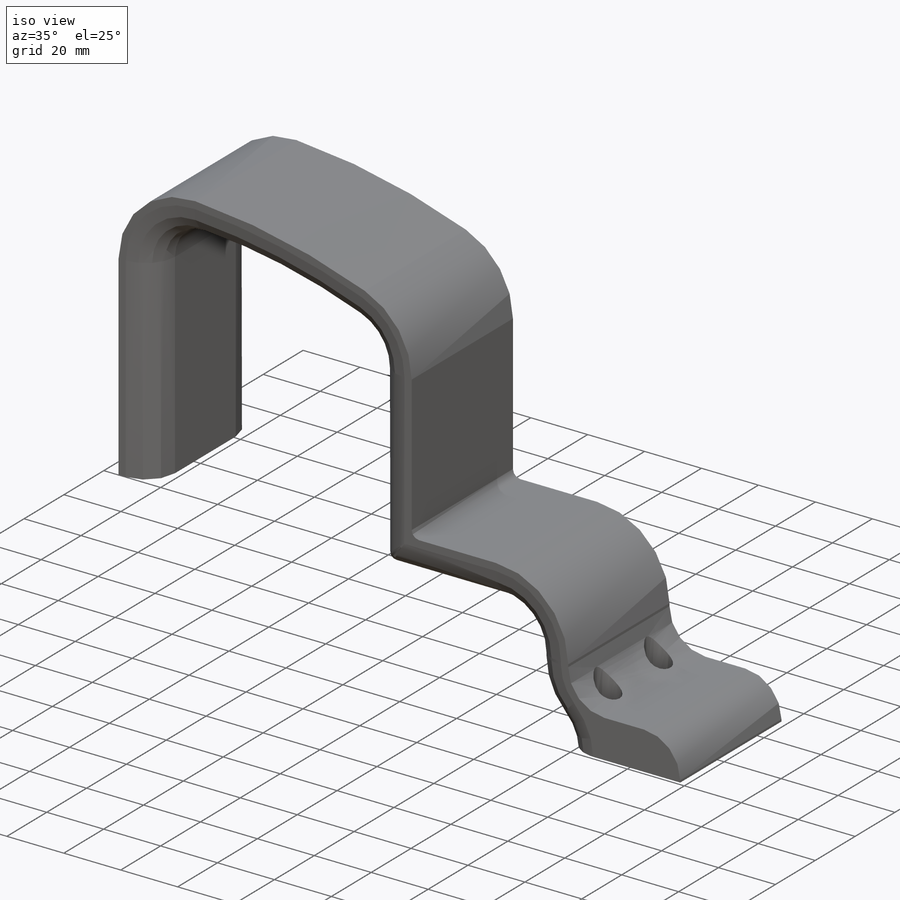
[diagram: iso view]
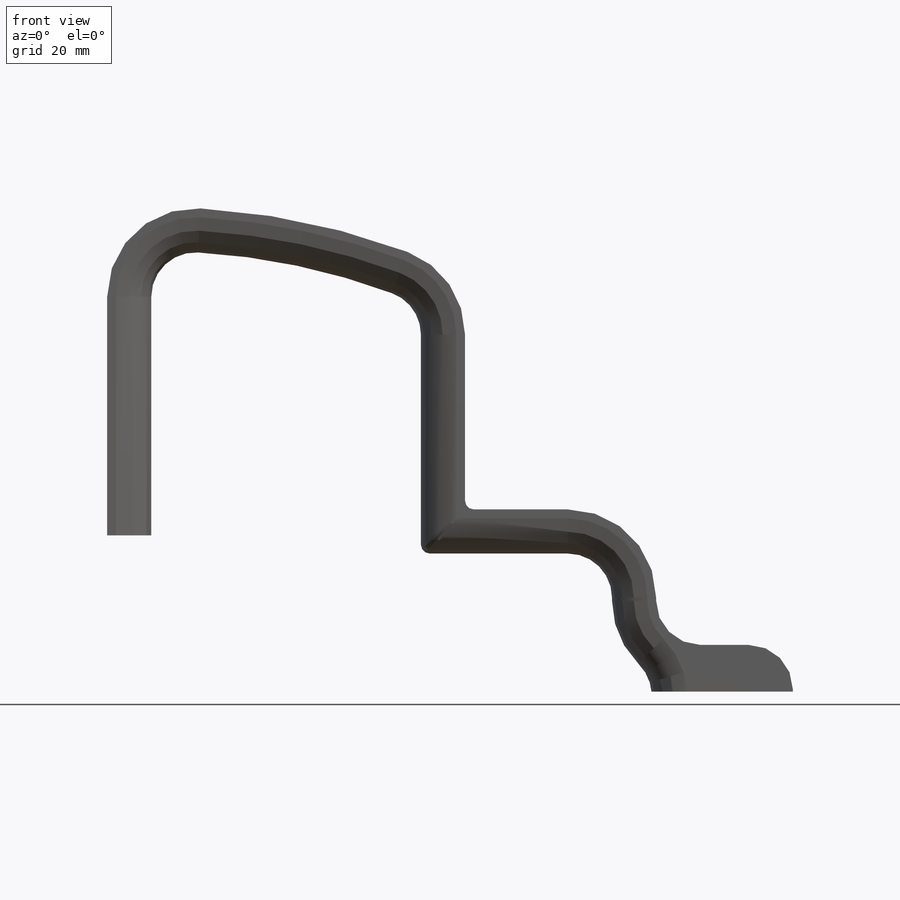
[diagram: front view]
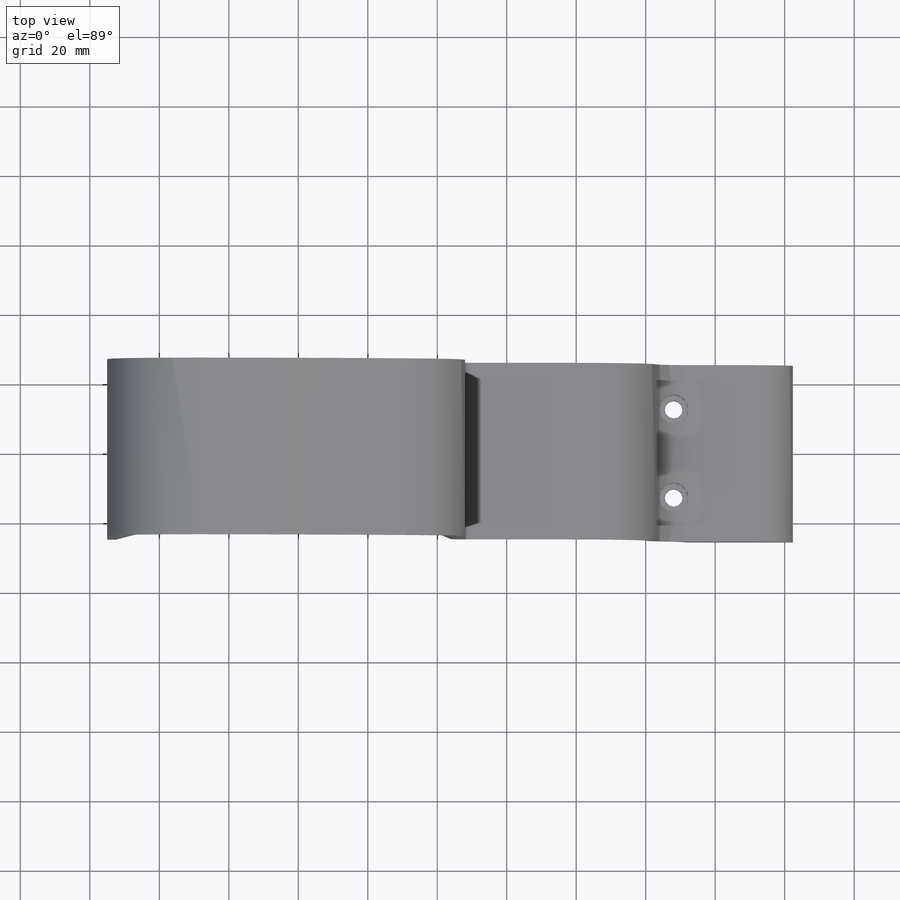
[diagram: top view]
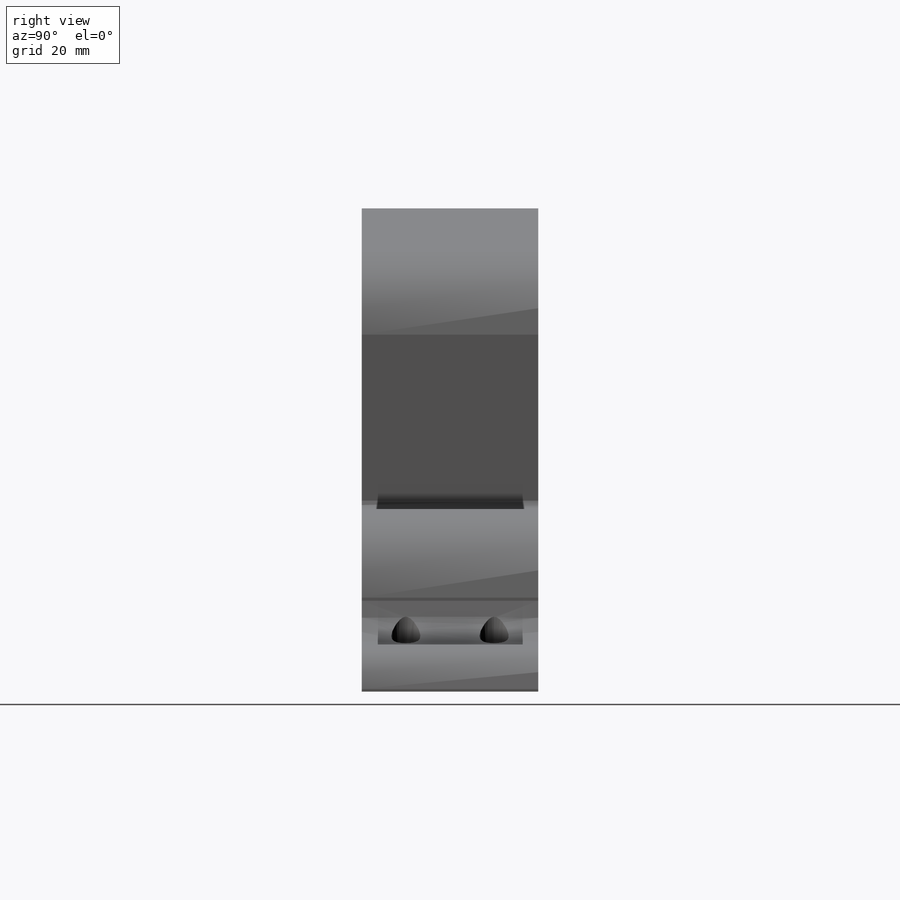
[diagram: right view]
SOLIDWORKS PART (.sldprt)
format: sldprt  version: not decoded by parser v0  size: 1,311,232 bytes
history: native  units: mm
features: sketch x13, fillet x4, hole x4, mirror x4, cut_extrude x3, thread x2, delete_body x2, material x1, extrude x1, plane x1 (+11 scaffold rows collapsed)
feature tree (46):
  scaffold x11  (default folders/planes/origin — collapsed)
  material  "ABS"
  sketch  "Sketch1"  dims[c1.D9=19.5mm c1.D10=495.3mm c1.D13=117.602mm c1.D17=429.95mm c1.D23=76.2mm c1.D30=5.588mm c1.D31=6.35mm c1.D32=12.7mm c1.D34=25.4mm c1.D35=50.8mm c1.D36=25.4mm c1.D37=25.4mm c1.D38=12.7mm c1.D33=25.4mm c2.D32=12.7mm c2.D35=25.4mm c2.D33=130.302mm c2.D36=48.26mm c2.D39=2.54mm c2.D42=12.7mm c2.D43=7.62mm c2.D1=180.0mm c2.D2=184.15mm c2.D3=2.3368mm c2.D4=130.1242mm c2.D5=2.3368mm c2.D6=26.924mm c2.D7=94.0mm c2.D8=158.0mm c2.D10=30.0mm c2.D11=92.0mm c2.D12=30.0mm c3.D12=174.28deg c3.D14=93.0mm c3.D15=123.0mm c3.D16=10.0mm c3.D18=15.0mm c3.D19=15.0mm c3.D20=5.0mm c3.D21=5.0mm c3.D22=44.45mm c3.D25=1.016mm c3.D26=0.508mm c3.D27=12.7mm c3.D28=182.3368mm c3.D29=12.7mm c3.D33=12.7mm c3.D40=12.7mm c3.D41=12.7mm c3.D24=10.0mm c3.D38=12.7mm]
  extrude  "Boss-Extrude2"  Depth=50.8mm
  fillet  "Fillet1"  Radius=10.16mm
  fillet  "Fillet2"  Radius=10.16mm
  sketch  "Sketch2"  dims[D1=116.0mm D2=6.096mm D3=9.525mm D5=3.175mm D4=11.0]
  cut_extrude  "Cut-Extrude1"  [1 undecoded]
  fillet  "Fillet3"  Radius=2.54mm
  fillet  "Fillet4"  Radius=2.54mm
  sketch  "Sketch3"  dims[D1=8.382mm]
  cut_extrude  "Cut-Extrude2"  Depth=25.1206mm
  hole  "#10-24 Tapped Hole1"  Diameter=3.7973mm Depth=25.014021mm
  sketch  "Sketch5"
  sketch  "Sketch4"  dims[hole-wizard template sketch: 60 standard entries collapsed; hole parameters kept: c18.Thru Tap Drill Depth=~25.014021mm]
  thread  "Hole Thread1"  Diameter=4.826mm  [1 undecoded]
  mirror  "Mirror1"
  plane  "Plane1"
  sketch  "Sketch6"
  cut_extrude  "Cut-Extrude3"  Depth=12.192mm
  hole  "#10-24 Tapped Hole2"  Diameter=3.7973mm Depth=38.1mm
  sketch  "Sketch8"
  sketch  "Sketch7"  dims[hole-wizard template sketch: 47 standard entries collapsed; hole parameters kept: c15.Tap Drill Depth=38.1mm c15.D3=~14.816244mm c15.Drill Angle=118.0deg]
  thread  "Hole Thread2"  Diameter=6.35mm  [1 undecoded]
  mirror  "Mirror2"
  sketch  "Sketch9"  dims[D1=6.35mm]
  delete_body  "Body-Delete1"
  delete_body  "Body-Delete2"
  hole  "#10 Clearance Hole1"  Diameter=5.1054mm Depth=25.4mm
  sketch  "Sketch11"
  sketch  "Sketch10"  dims[hole-wizard template sketch: 47 standard entries collapsed; hole parameters kept: c15.Hole Depth=25.4mm c15.D3=~14.816244mm c15.Drill Angle=118.0deg]
  mirror  "Mirror3"
  hole  "#10 Clearance Hole2"  Diameter=5.1054mm Depth=25.4mm
  sketch  "Sketch13"
  sketch  "Sketch12"  dims[hole-wizard template sketch: 47 standard entries collapsed; hole parameters kept: c15.Hole Depth=25.4mm c15.D3=~14.816244mm c15.Drill Angle=118.0deg]
  mirror  "Mirror4"
decode coverage: 21 of 33 modeling features carry decoded parameters
note: ~ marks probable driven/reference dimensions
note: 3 parameter values undecoded
summary: Diameter pulled from absorbed wizard sketch
note: suppression state not decoded; provenance and decode notes live in map.json
